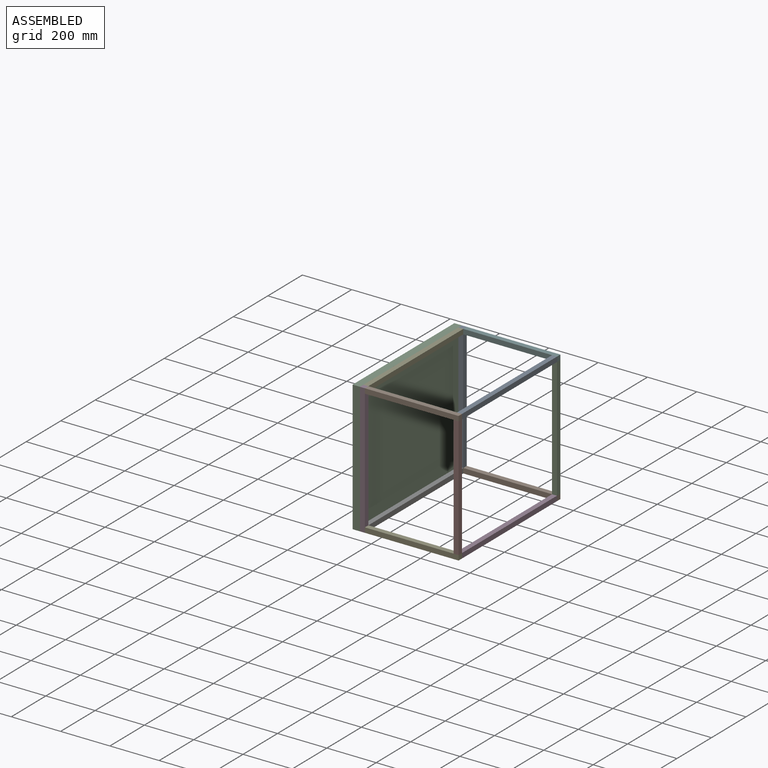
[diagram: assembled view]
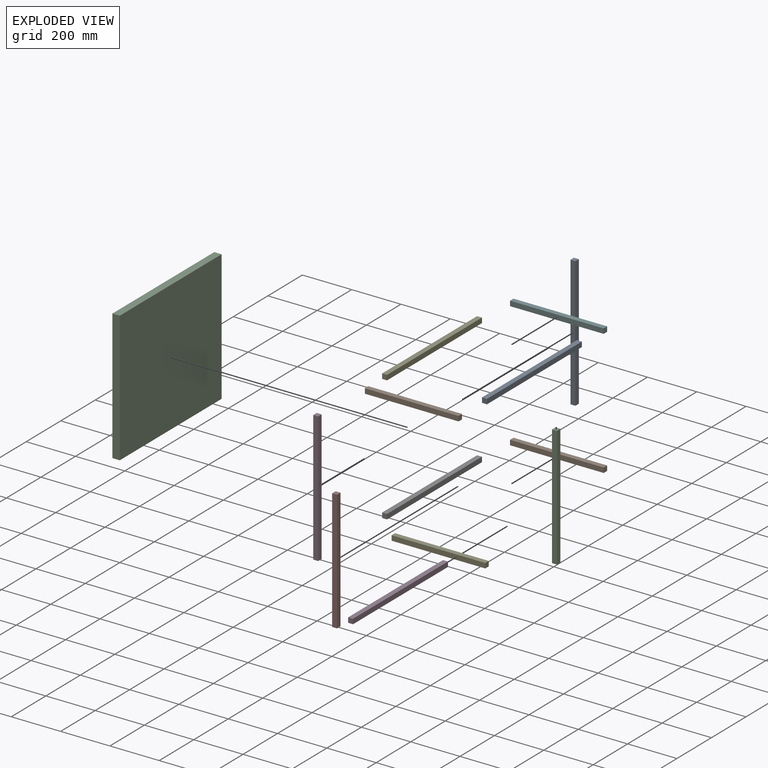
[diagram: exploded view]
GUIDED TOUR — MATED ASSEMBLY (Onshape document 57854998e4b019039451f812, AutoMate assembly 57854998e4b019039451f812_761b1b42168490a7aa2445a3_7e56be19967d6764d0dd4765_default)

This assembly has 13 components, labeled P0..P12 below (a component is one placed occurrence of a part; the same part can appear more than once), held together by 12 mates. A mate is a constraint between two components; its type names the relative motion it leaves free:
  FASTENED — locks the two components together rigidly (no relative motion).
Axis/direction vectors are unit vectors and 'through' points are millimeter coordinates, both in the assembly's world frame.

MATES
  1. FASTENED "Fastened 1": P0 <-> P4, direction (0.000, -1.000, 0.000) through (15.89, 796.18, 321.85) mm
  2. FASTENED "Fastened 3": P7 <-> P9, direction (0.000, 0.000, 1.000) through (415.89, 226.18, 301.85) mm
  3. FASTENED "Fastened 7": P1 <-> P0, direction (-1.000, 0.000, 0.000) through (35.89, 816.18, -208.15) mm
  4. FASTENED "Fastened 9": P8 <-> P5, direction (0.000, 1.000, 0.000) through (415.89, 796.18, 321.85) mm
  5. FASTENED "Fastened 2": P4 <-> P3, direction (0.000, -1.000, 0.000) through (35.89, 246.18, 321.85) mm
  6. FASTENED "Fastened 13": P10 <-> P0, direction (1.000, 0.000, 0.000) through (15.89, 816.18, -208.15) mm
  7. FASTENED "Fastened 4": P6 <-> P3, direction (0.000, -1.000, 0.000) through (35.89, 246.18, -208.15) mm
  8. FASTENED "Fastened 10": P11 <-> P1, direction (0.000, 1.000, 0.000) through (415.89, 796.18, -188.15) mm
  9. FASTENED "Fastened 6": P5 <-> P0, direction (-1.000, 0.000, 0.000) through (35.89, 816.18, 321.85) mm
  10. FASTENED "Fastened 5": P9 <-> P3, direction (-1.000, 0.000, 0.000) through (35.89, 226.18, 321.85) mm
  11. FASTENED "Fastened 8": P12 <-> P3, direction (-1.000, 0.000, 0.000) through (35.89, 226.18, -208.15) mm
  12. FASTENED "Fastened 11": P2 <-> P5, direction (0.000, 0.000, 1.000) through (415.89, 816.18, 301.85) mm

ASSEMBLY ORDER
  1. P9 — the base component [order verified]
  2. P3 [order verified]
  3. P8 [order verified]
  4. P6 [order verified]
  5. P4 [order verified]
  6. P0 [order verified]
  7. P5 [order verified]
  8. P2 [order verified]
  9. P1 [order verified]
  10. P12 [order verified]
  11. P11 [order verified]
  12. P7 [order verified]
  13. P10 [order verified]
(P1 verified with a relaxed clearance tolerance: the source model stores slight part interference there.)
Order-tag legend:
  [order verified] — this step's position reverses a verified removal order: the component was checked to insert without passing through the ones already placed.

Of the 13 components, 13 carry the full construction recipe — the FeatureScript program that regenerates the part's solid from scratch; the rest are supplied as boundary geometry only.
Because this assembly has more than 12 components, the tour below covers the 12 most significant ones individually (every recipe-attached component first, then the largest by part volume), in assembly order; the remaining 1 are summarized together in a grouped section at the end.
Each toured component is shown spotlighted twice — in the assembled view, then in the exploded view, where a leader line traces a displaced component back to its assembled socket (saturated green if recipe-attached, orange if geometry-only; every other component desaturated gray) — followed by its recipe or geometry summary and the mates that hold it.
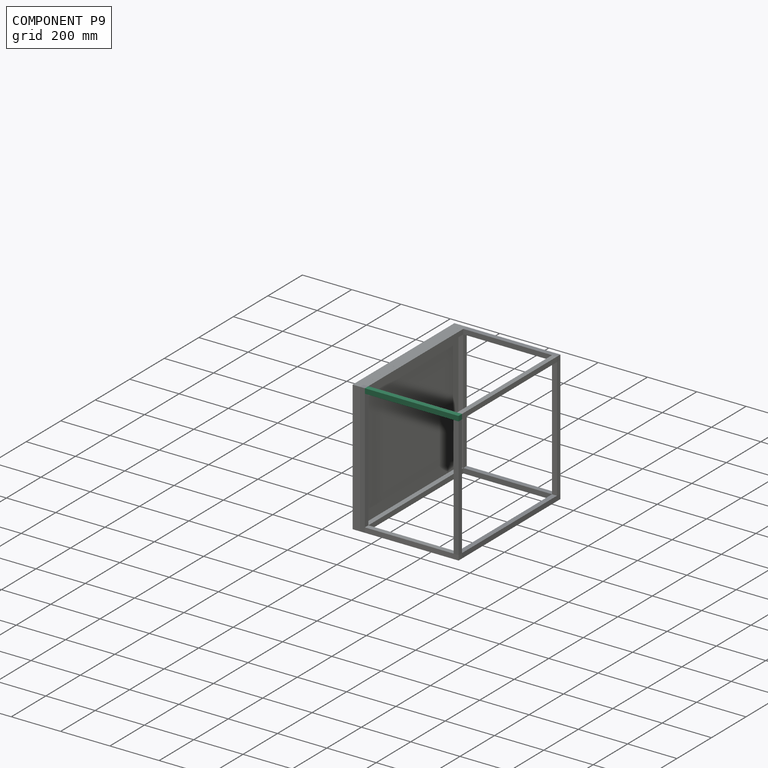
[diagram: component P9 — assembled]
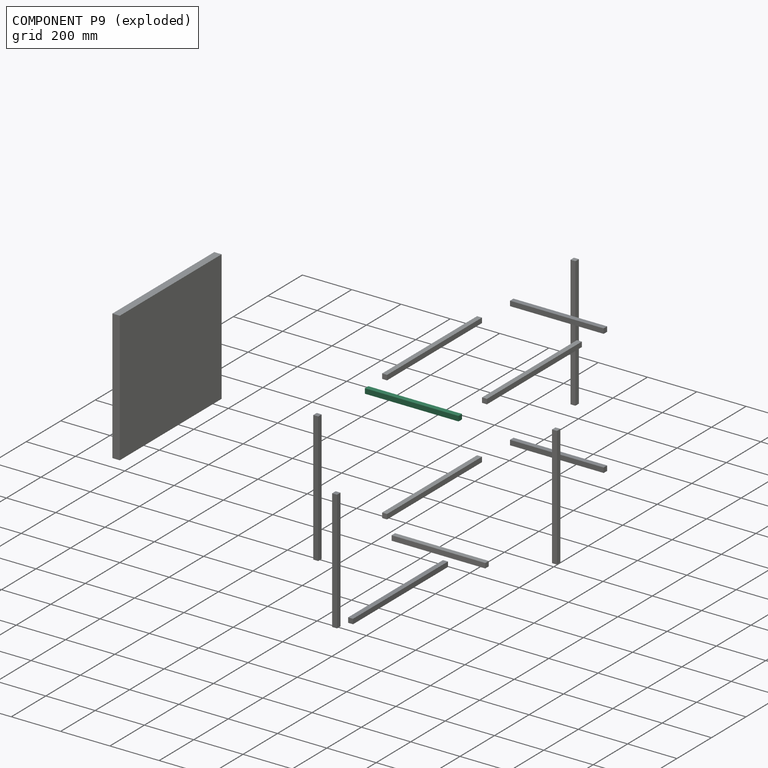
[diagram: component P9 — exploded]
COMPONENT P9 — same part as P1 (CADFS 00195522); its construction recipe is shown at P1.
Held by: FASTENED mate "Fastened 3" to P7; FASTENED mate "Fastened 5" to P3.
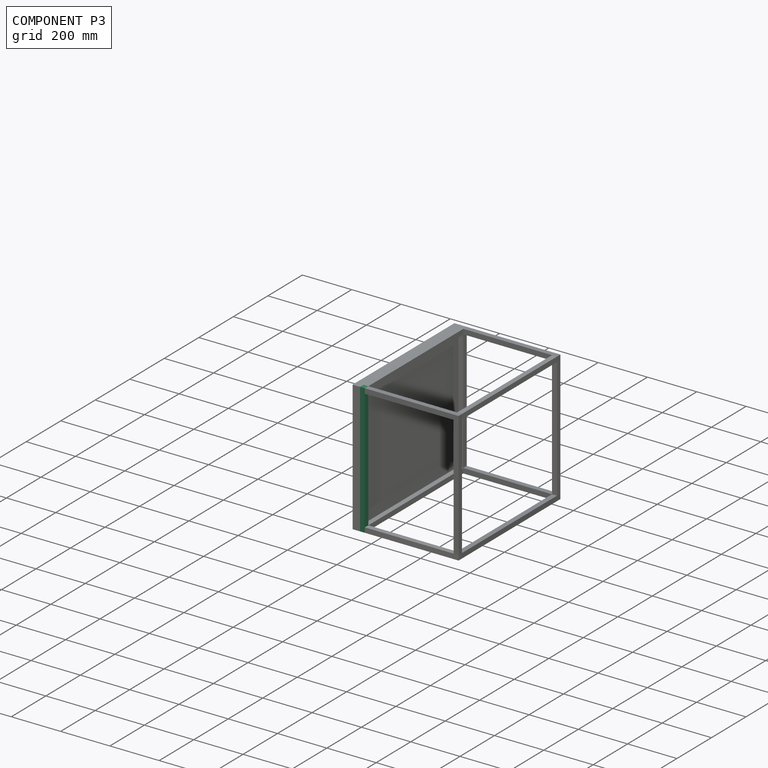
[diagram: component P3 — assembled]
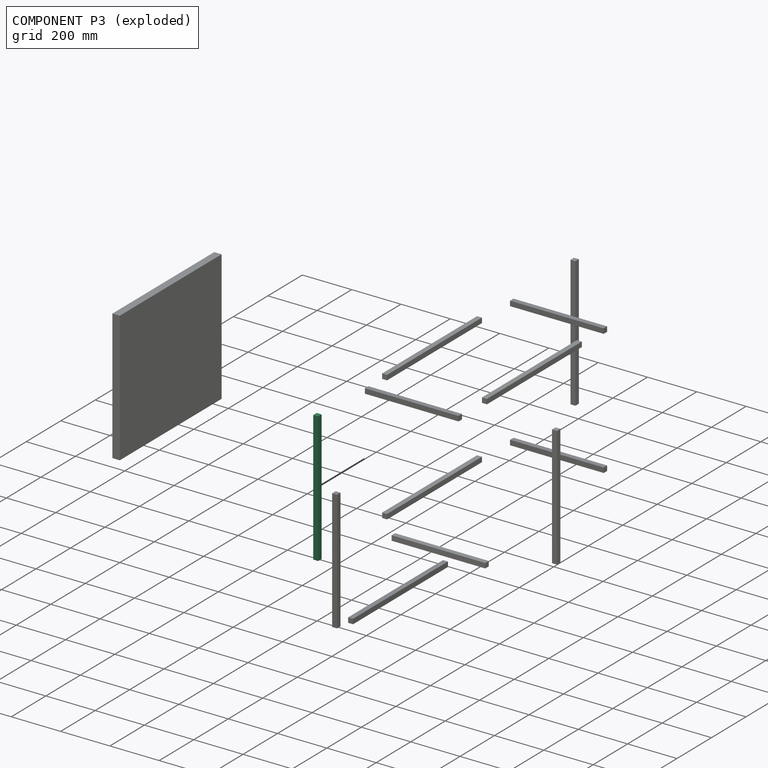
[diagram: component P3 — exploded]
COMPONENT P3 — same part as P0 (CADFS 00195802); its construction recipe is shown at P0.
Held by: FASTENED mate "Fastened 2" to P4; FASTENED mate "Fastened 4" to P6; FASTENED mate "Fastened 5" to P9; FASTENED mate "Fastened 8" to P12.
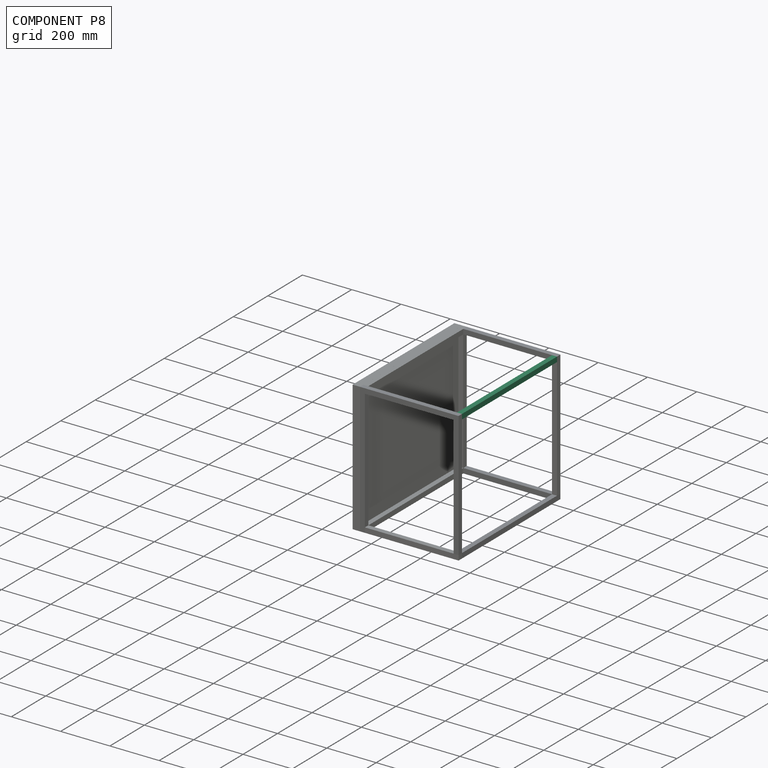
[diagram: component P8 — assembled]
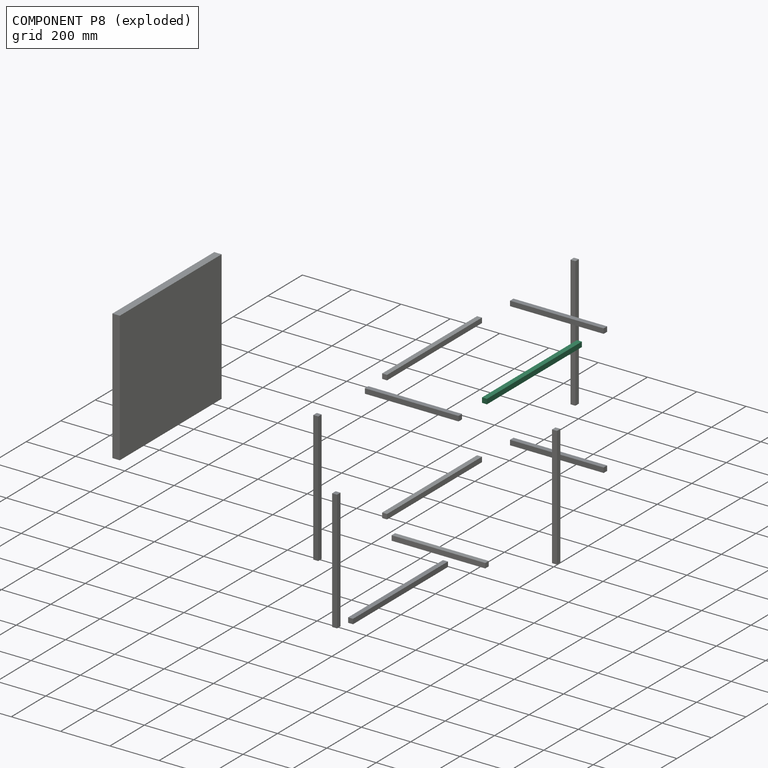
[diagram: component P8 — exploded]
COMPONENT P8 — same part as P4 (CADFS 00195523); its construction recipe is shown at P4.
Held by: FASTENED mate "Fastened 9" to P5.
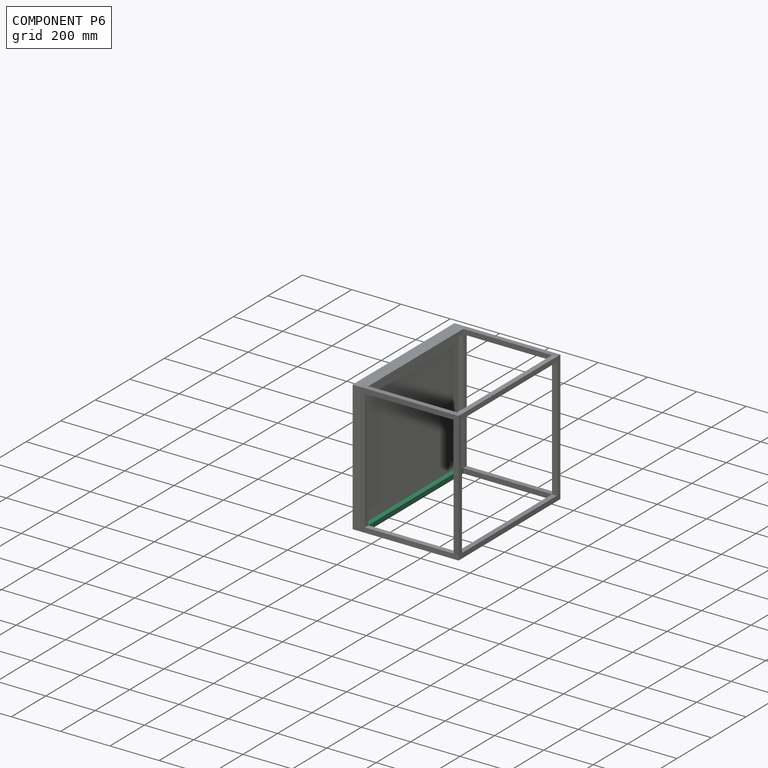
[diagram: component P6 — assembled]
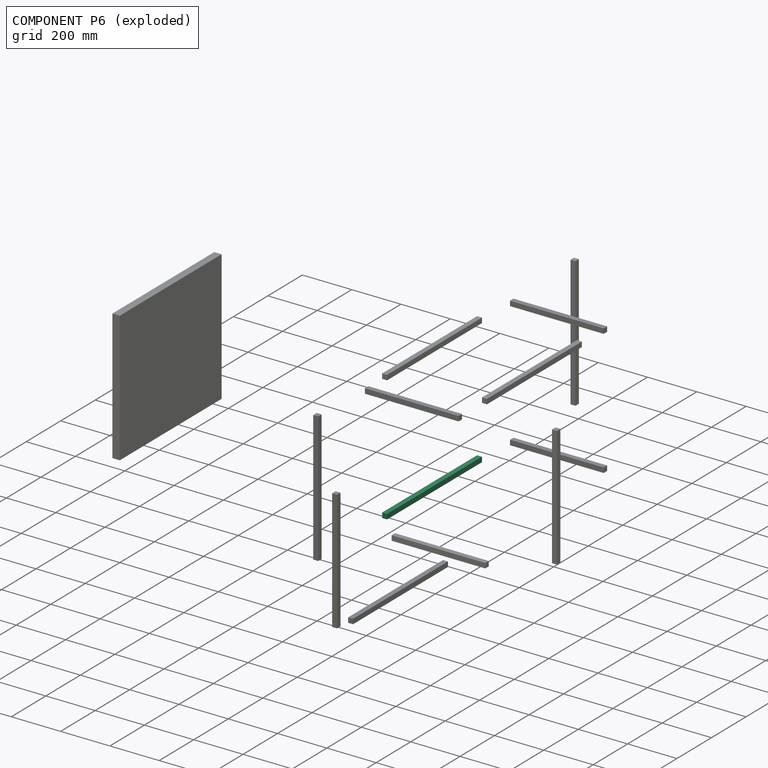
[diagram: component P6 — exploded]
COMPONENT P6 — same part as P4 (CADFS 00195523); its construction recipe is shown at P4.
Held by: FASTENED mate "Fastened 4" to P3.
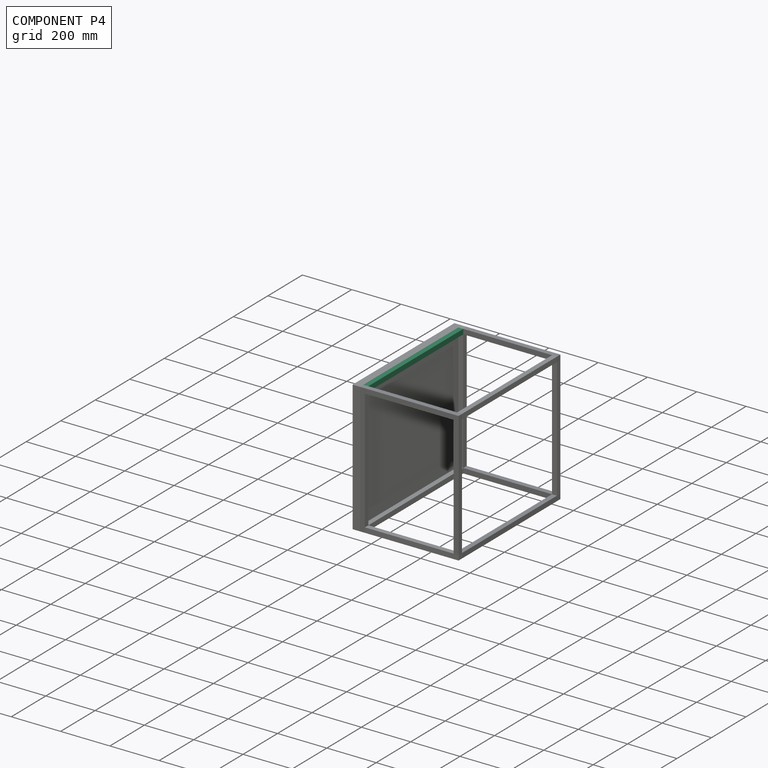
[diagram: component P4 — assembled]
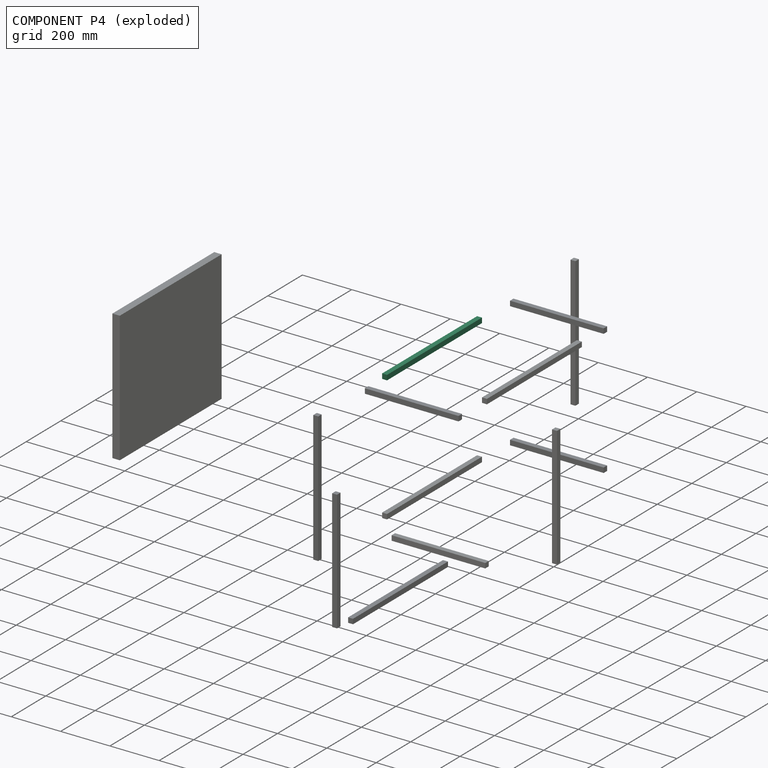
[diagram: component P4 — exploded]
COMPONENT P4 — recipe-attached (CADFS 00195523, mesh-verified: the recipe's output STEP matches this component's geometry to below the mesh-comparison resolution (tessellation chordal tolerance ~0.826 mm)).
Held by: FASTENED mate "Fastened 1" to P0; FASTENED mate "Fastened 2" to P3.
Construction recipe (FeatureScript — the CAD program that rebuilds this solid; sketch coordinates are in the units given by the * unit suffixes, e.g. mm):

FeatureScript 1511;
import(path : "onshape/std/geometry.fs", version : "1511.0");
import(path : "onshape/std/common.fs", version : "1511.0");
const mm = millimeter;
const VERTEX = EntityType.VERTEX;
const EDGE = EntityType.EDGE;
const FACE = EntityType.FACE;
const BODY = EntityType.BODY;
function v(x, y){return vector(x, y);}
function OD(order){return orderDisambiguation(order);}
function OSD(set){return originalSetDisambiguation(set);}
function TD(topology){return topologyDisambiguation(topology);}
function TDD(query){return trueDependencyDisambiguation(query);}
function sQuery(a, b, c) {return sketchEntityQuery(a, b, c);}

annotation { "Feature Type Name" : "Feature", "Feature Type Description" : "" }
export const myFeature = defineFeature(function(context is Context, id is Id, definition is map)
    precondition{}
    {
        {
            var Q0;
            Q0=qCreatedBy(makeId("Top.planeOp"),FACE);
            var sketch = newSketch(context, id + "F0", { "sketchPlane" : qUnion([Q0])});
            skLineSegment(sketch, "E0.bottom", {"start": v(-96.3, -36.6) * mm, "end": v(-76.3, -36.6) * mm});
            skLineSegment(sketch, "E0.top", {"start": v(-96.3, -16.6) * mm, "end": v(-76.3, -16.6) * mm});
            skLineSegment(sketch, "E0.left", {"start": v(-96.3, -36.6) * mm, "end": v(-96.3, -16.6) * mm});
            skLineSegment(sketch, "E0.right", {"start": v(-76.3, -36.6) * mm, "end": v(-76.3, -16.6) * mm});
            skSolve(sketch);
        }
        {
            var Q0;
            Q0=makeQuery(id+"F0.imprint","IMPRINT",FACE,{"disambiguationData":[TD([[makeQuery(id+"F0.imprint","IMPRINT",EDGE,{"derivedFrom":sQuery(id+"F0.wireOp",EDGE,"E0.bottom")}),1.0]])]});
            extrude(context, id + "F1", {"entities" : qUnion([Q0]), "depth" : 550 * mm});
        }
    });
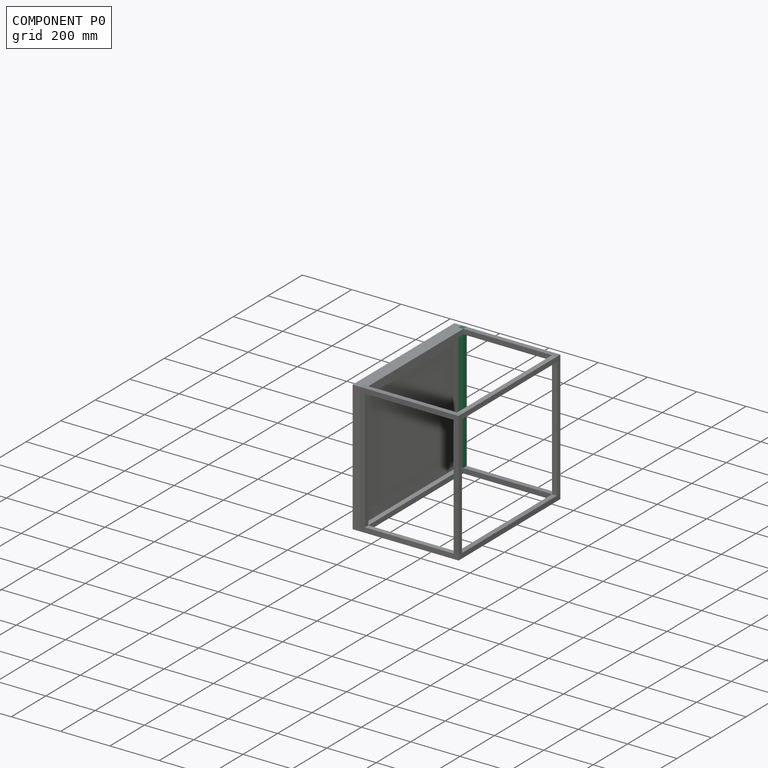
[diagram: component P0 — assembled]
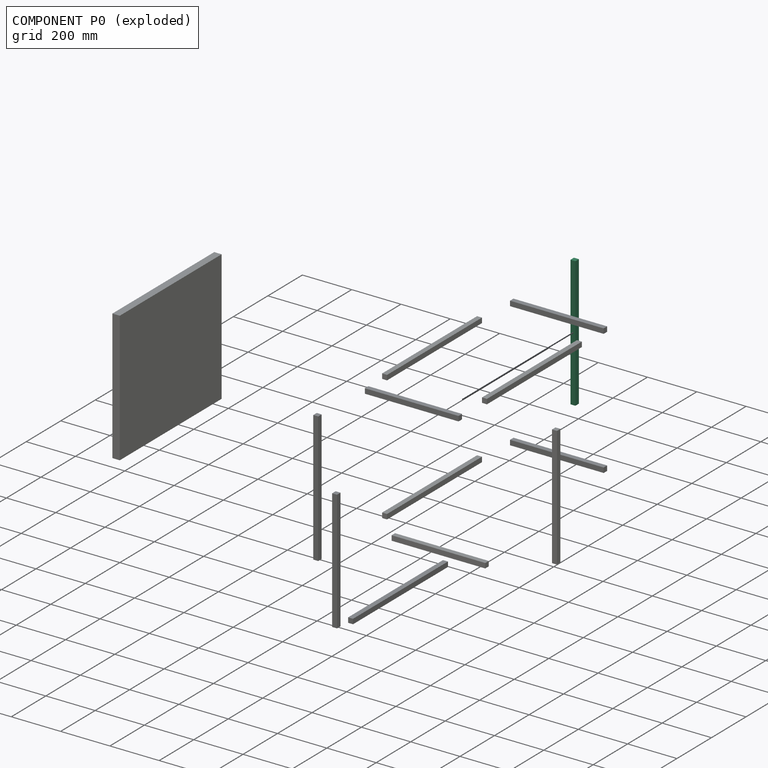
[diagram: component P0 — exploded]
COMPONENT P0 — recipe-attached (CADFS 00195802, mesh-verified: the recipe's output STEP matches this component's geometry to below the mesh-comparison resolution (tessellation chordal tolerance ~0.796 mm)).
Held by: FASTENED mate "Fastened 1" to P4; FASTENED mate "Fastened 7" to P1; FASTENED mate "Fastened 13" to P10; FASTENED mate "Fastened 6" to P5.
Construction recipe (FeatureScript — the CAD program that rebuilds this solid; sketch coordinates are in the units given by the * unit suffixes, e.g. mm):

FeatureScript 1511;
import(path : "onshape/std/geometry.fs", version : "1511.0");
import(path : "onshape/std/common.fs", version : "1511.0");
const mm = millimeter;
const VERTEX = EntityType.VERTEX;
const EDGE = EntityType.EDGE;
const FACE = EntityType.FACE;
const BODY = EntityType.BODY;
function v(x, y){return vector(x, y);}
function OD(order){return orderDisambiguation(order);}
function OSD(set){return originalSetDisambiguation(set);}
function TD(topology){return topologyDisambiguation(topology);}
function TDD(query){return trueDependencyDisambiguation(query);}
function sQuery(a, b, c) {return sketchEntityQuery(a, b, c);}

annotation { "Feature Type Name" : "Feature", "Feature Type Description" : "" }
export const myFeature = defineFeature(function(context is Context, id is Id, definition is map)
    precondition{}
    {
        {
            var Q0;
            Q0=qCreatedBy(makeId("Top.planeOp"),FACE);
            var sketch = newSketch(context, id + "F0", { "sketchPlane" : qUnion([Q0])});
            skLineSegment(sketch, "E0.bottom", {"start": v(-70.8, -20) * mm, "end": v(-50.8, -20) * mm});
            skLineSegment(sketch, "E0.top", {"start": v(-70.8, 0) * mm, "end": v(-50.8, 0) * mm});
            skLineSegment(sketch, "E0.left", {"start": v(-70.8, -20) * mm, "end": v(-70.8, 0) * mm});
            skLineSegment(sketch, "E0.right", {"start": v(-50.8, -20) * mm, "end": v(-50.8, 0) * mm});
            skSolve(sketch);
        }
        {
            var Q0;
            Q0=makeQuery(id+"F0.imprint","IMPRINT",FACE,{"disambiguationData":[TD([[makeQuery(id+"F0.imprint","IMPRINT",EDGE,{"derivedFrom":sQuery(id+"F0.wireOp",EDGE,"E0.bottom")}),1.0]])]});
            extrude(context, id + "F1", {"entities" : qUnion([Q0]), "depth" : 530 * mm});
        }
    });
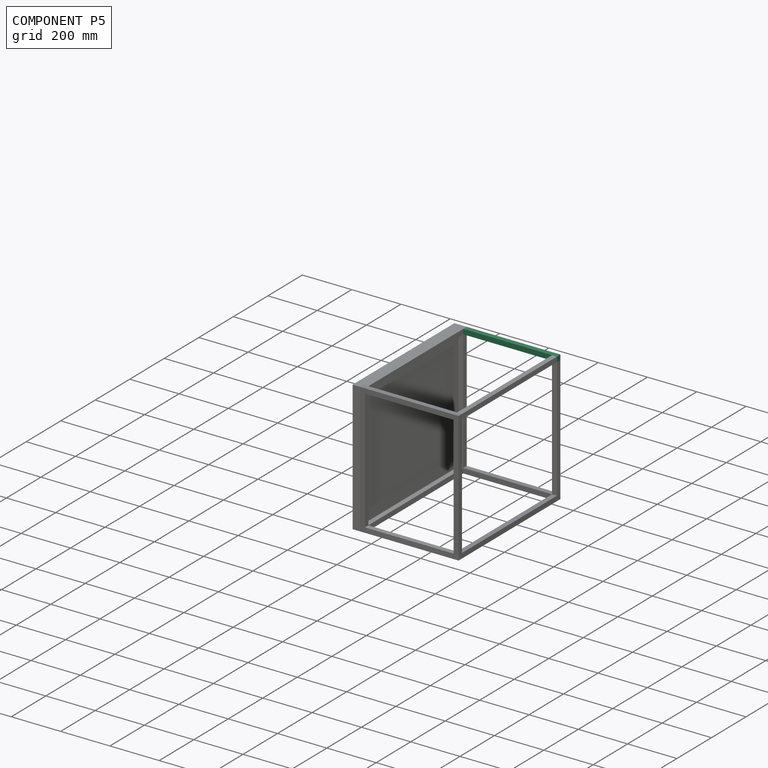
[diagram: component P5 — assembled]
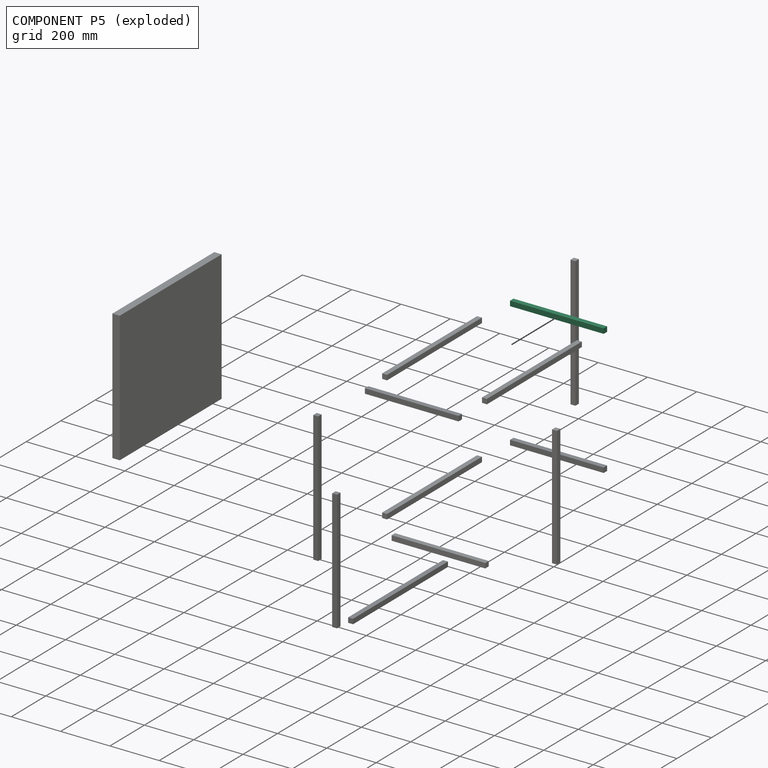
[diagram: component P5 — exploded]
COMPONENT P5 — same part as P1 (CADFS 00195522); its construction recipe is shown at P1.
Held by: FASTENED mate "Fastened 9" to P8; FASTENED mate "Fastened 6" to P0; FASTENED mate "Fastened 11" to P2.
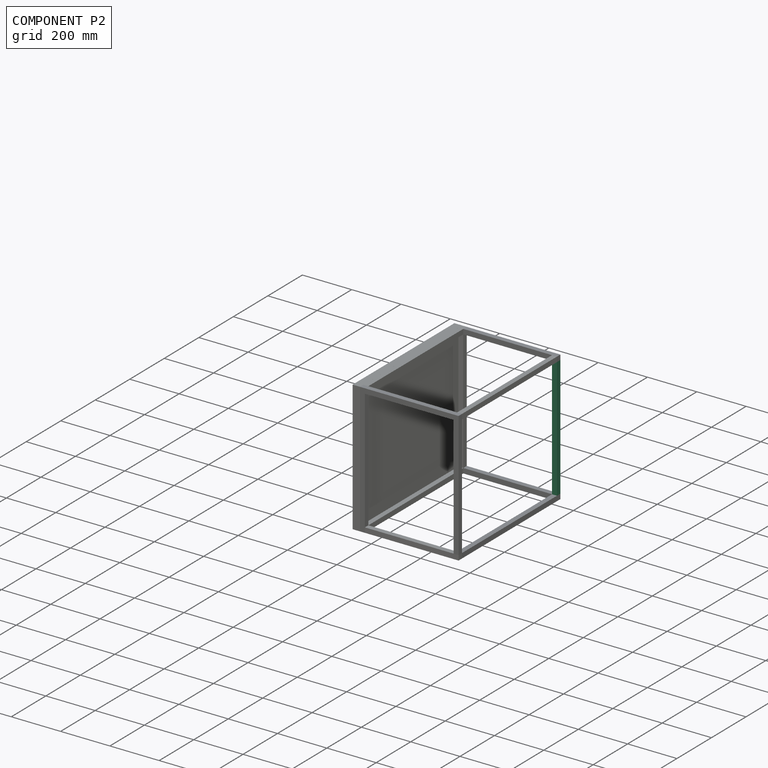
[diagram: component P2 — assembled]
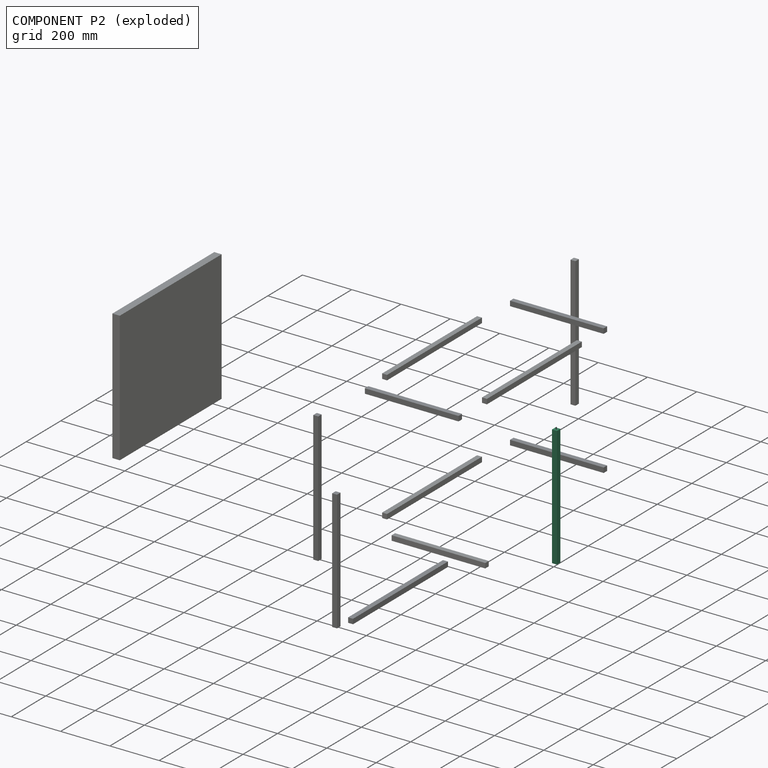
[diagram: component P2 — exploded]
COMPONENT P2 — recipe-attached (CADFS 00195806, mesh-verified: the recipe's output STEP matches this component's geometry to below the mesh-comparison resolution (tessellation chordal tolerance ~0.736 mm)).
Held by: FASTENED mate "Fastened 11" to P5.
Construction recipe (FeatureScript — the CAD program that rebuilds this solid; sketch coordinates are in the units given by the * unit suffixes, e.g. mm):

FeatureScript 1511;
import(path : "onshape/std/geometry.fs", version : "1511.0");
import(path : "onshape/std/common.fs", version : "1511.0");
const mm = millimeter;
const VERTEX = EntityType.VERTEX;
const EDGE = EntityType.EDGE;
const FACE = EntityType.FACE;
const BODY = EntityType.BODY;
function v(x, y){return vector(x, y);}
function OD(order){return orderDisambiguation(order);}
function OSD(set){return originalSetDisambiguation(set);}
function TD(topology){return topologyDisambiguation(topology);}
function TDD(query){return trueDependencyDisambiguation(query);}
function sQuery(a, b, c) {return sketchEntityQuery(a, b, c);}

annotation { "Feature Type Name" : "Feature", "Feature Type Description" : "" }
export const myFeature = defineFeature(function(context is Context, id is Id, definition is map)
    precondition{}
    {
        {
            var Q0;
            Q0=qCreatedBy(makeId("Top.planeOp"),FACE);
            var sketch = newSketch(context, id + "F0", { "sketchPlane" : qUnion([Q0])});
            skLineSegment(sketch, "E0.bottom", {"start": v(-91.8, -27.19) * mm, "end": v(-71.8, -27.19) * mm});
            skLineSegment(sketch, "E0.top", {"start": v(-91.8, -7.19) * mm, "end": v(-71.8, -7.19) * mm});
            skLineSegment(sketch, "E0.left", {"start": v(-91.8, -27.19) * mm, "end": v(-91.8, -7.19) * mm});
            skLineSegment(sketch, "E0.right", {"start": v(-71.8, -27.19) * mm, "end": v(-71.8, -7.19) * mm});
            skSolve(sketch);
        }
        {
            var Q0;
            Q0=makeQuery(id+"F0.imprint","IMPRINT",FACE,{"disambiguationData":[TD([[makeQuery(id+"F0.imprint","IMPRINT",EDGE,{"derivedFrom":sQuery(id+"F0.wireOp",EDGE,"E0.bottom")}),1.0]])]});
            extrude(context, id + "F1", {"entities" : qUnion([Q0]), "depth" : 490 * mm});
        }
    });
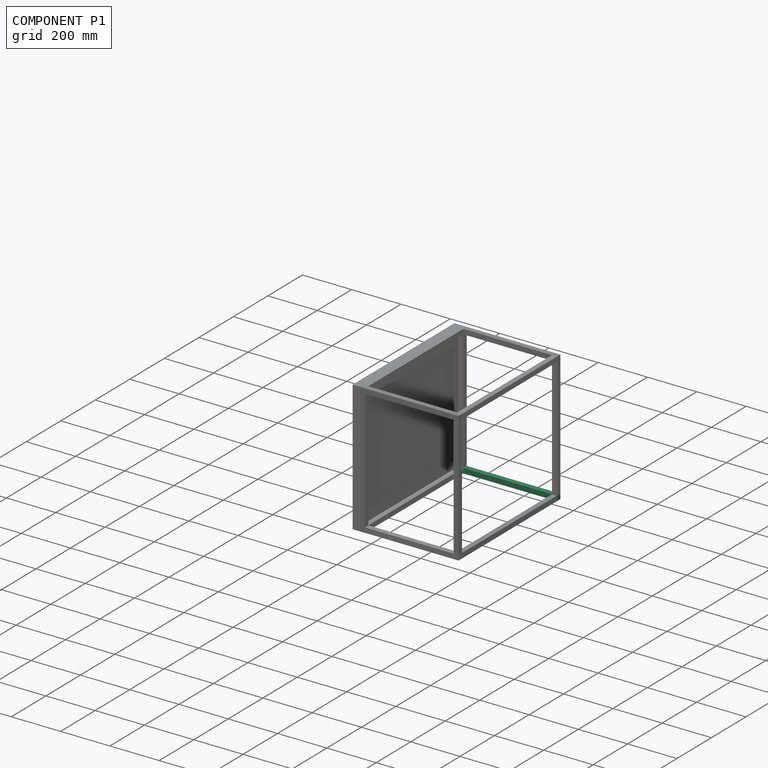
[diagram: component P1 — assembled]
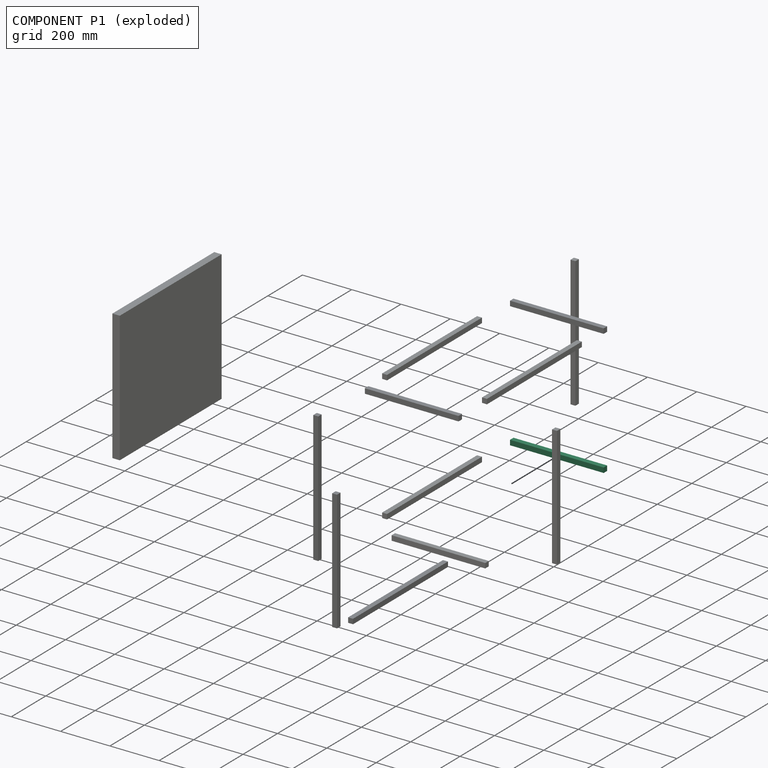
[diagram: component P1 — exploded]
COMPONENT P1 — recipe-attached (CADFS 00195522, mesh-verified: the recipe's output STEP matches this component's geometry to below the mesh-comparison resolution (tessellation chordal tolerance ~0.572 mm)).
Held by: FASTENED mate "Fastened 7" to P0; FASTENED mate "Fastened 10" to P11.
Construction recipe (FeatureScript — the CAD program that rebuilds this solid; sketch coordinates are in the units given by the * unit suffixes, e.g. mm):

FeatureScript 1511;
import(path : "onshape/std/geometry.fs", version : "1511.0");
import(path : "onshape/std/common.fs", version : "1511.0");
const mm = millimeter;
const VERTEX = EntityType.VERTEX;
const EDGE = EntityType.EDGE;
const FACE = EntityType.FACE;
const BODY = EntityType.BODY;
function v(x, y){return vector(x, y);}
function OD(order){return orderDisambiguation(order);}
function OSD(set){return originalSetDisambiguation(set);}
function TD(topology){return topologyDisambiguation(topology);}
function TDD(query){return trueDependencyDisambiguation(query);}
function sQuery(a, b, c) {return sketchEntityQuery(a, b, c);}

annotation { "Feature Type Name" : "Feature", "Feature Type Description" : "" }
export const myFeature = defineFeature(function(context is Context, id is Id, definition is map)
    precondition{}
    {
        {
            var Q0;
            Q0=qCreatedBy(makeId("Top.planeOp"),FACE);
            var sketch = newSketch(context, id + "F0", { "sketchPlane" : qUnion([Q0])});
            skLineSegment(sketch, "E0.bottom", {"start": v(-99.2, -20) * mm, "end": v(-79.2, -20) * mm});
            skLineSegment(sketch, "E0.top", {"start": v(-99.2, 0) * mm, "end": v(-79.2, 0) * mm});
            skLineSegment(sketch, "E0.left", {"start": v(-99.2, -20) * mm, "end": v(-99.2, 0) * mm});
            skLineSegment(sketch, "E0.right", {"start": v(-79.2, -20) * mm, "end": v(-79.2, 0) * mm});
            skSolve(sketch);
        }
        {
            var Q0;
            Q0=makeQuery(id+"F0.imprint","IMPRINT",FACE,{"disambiguationData":[TD([[makeQuery(id+"F0.imprint","IMPRINT",EDGE,{"derivedFrom":sQuery(id+"F0.wireOp",EDGE,"E0.bottom")}),1.0]])]});
            extrude(context, id + "F1", {"entities" : qUnion([Q0]), "depth" : 380 * mm});
        }
    });
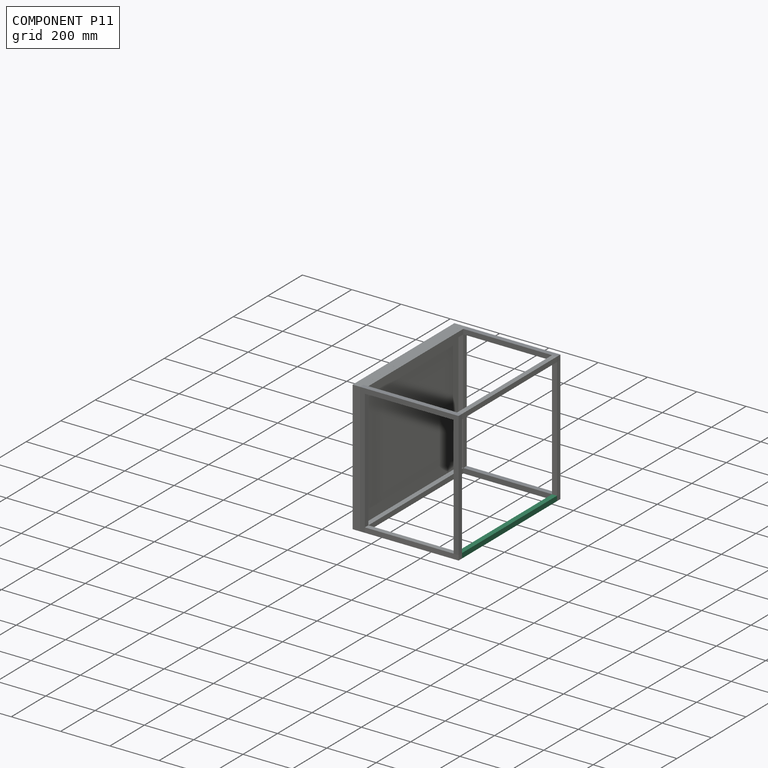
[diagram: component P11 — assembled]
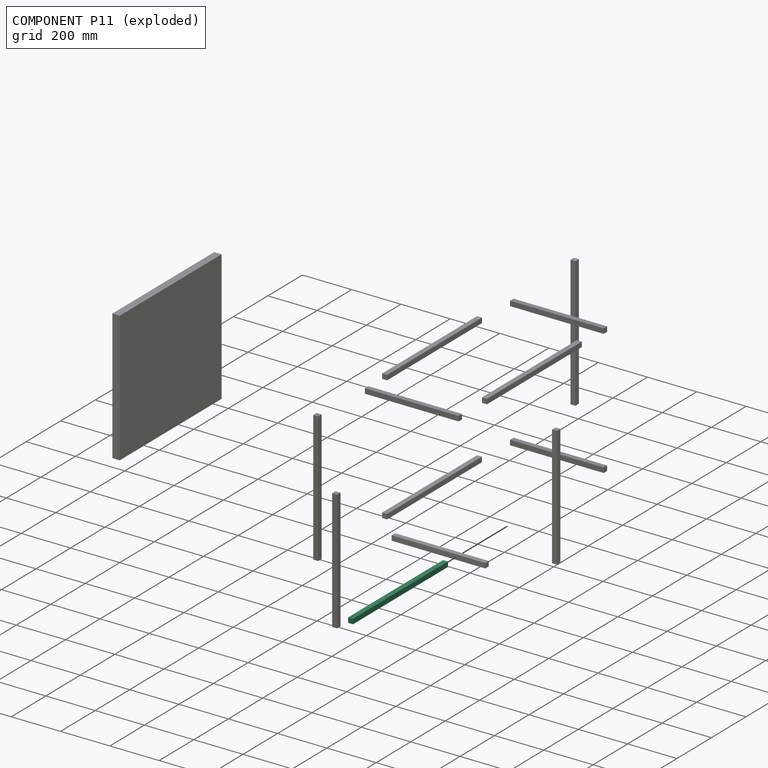
[diagram: component P11 — exploded]
COMPONENT P11 — same part as P4 (CADFS 00195523); its construction recipe is shown at P4.
Held by: FASTENED mate "Fastened 10" to P1.
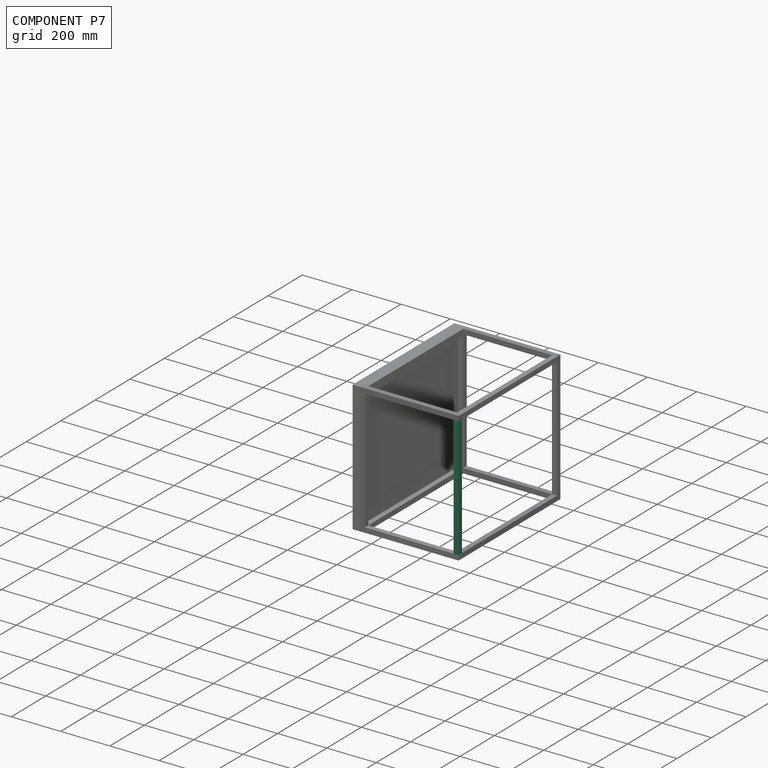
[diagram: component P7 — assembled]
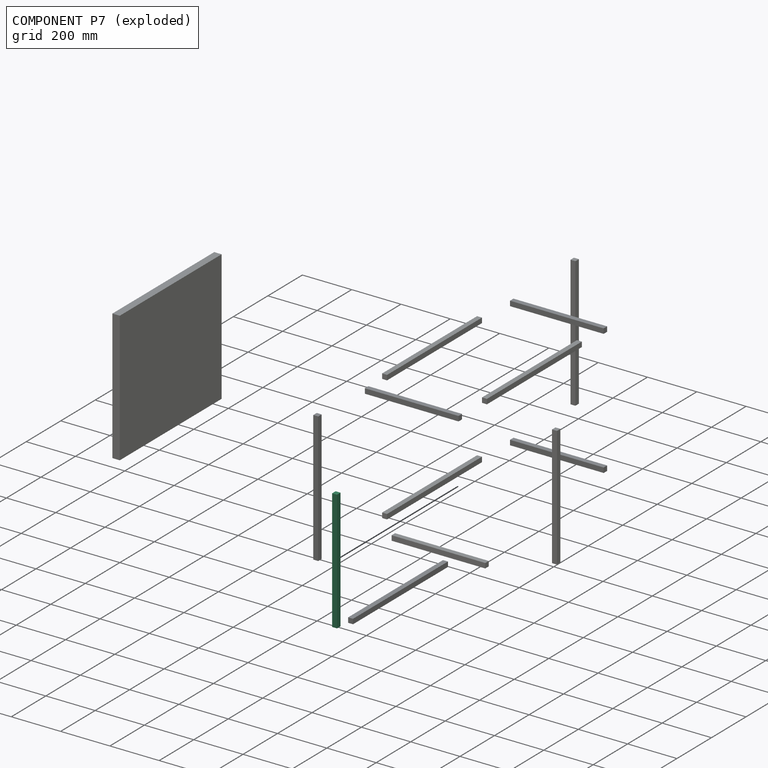
[diagram: component P7 — exploded]
COMPONENT P7 — same part as P2 (CADFS 00195806); its construction recipe is shown at P2.
Held by: FASTENED mate "Fastened 3" to P9.
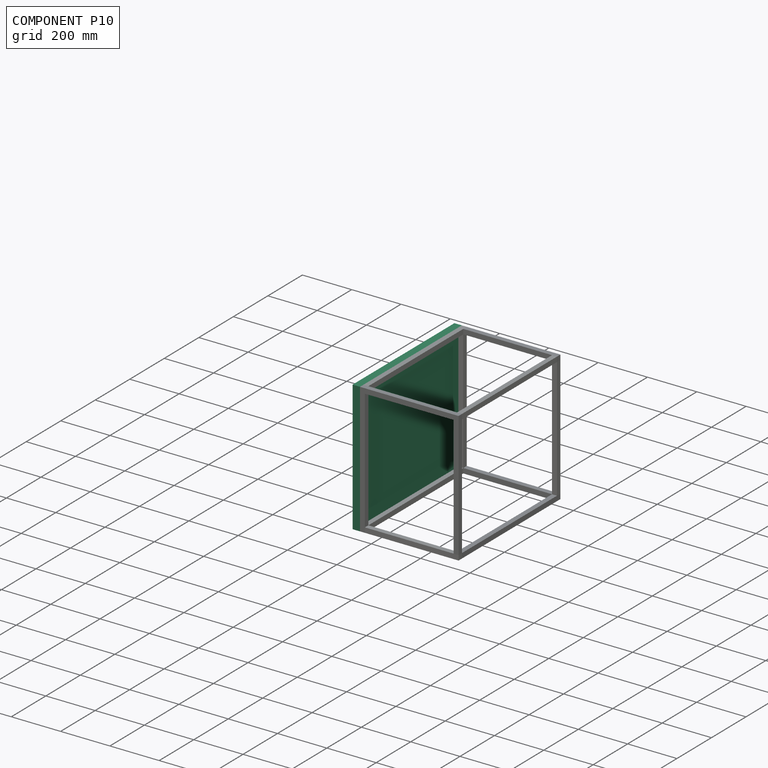
[diagram: component P10 — assembled]
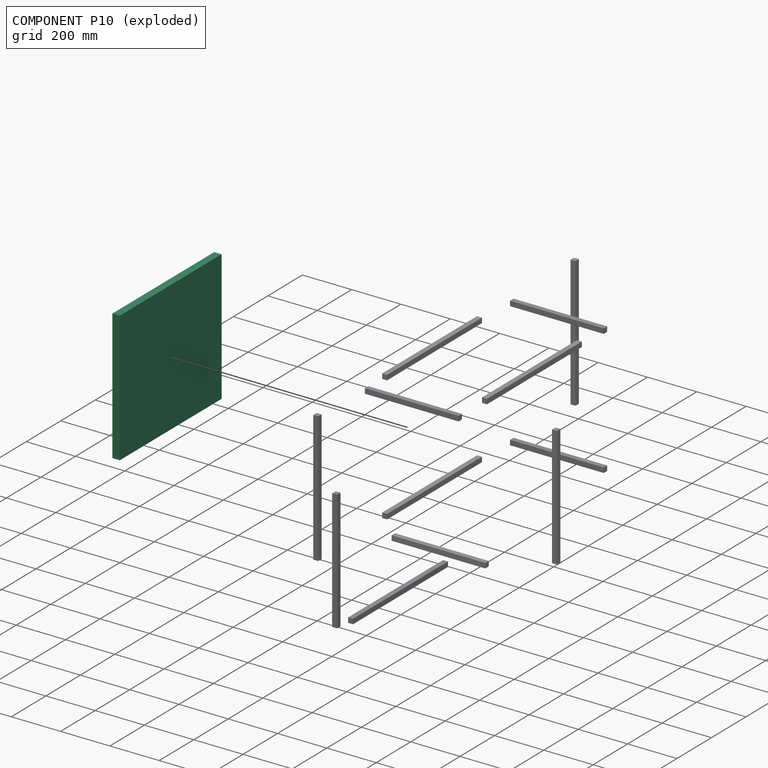
[diagram: component P10 — exploded]
COMPONENT P10 — recipe-attached (CADFS 00195805, mesh-verified: the recipe's output STEP matches this component's geometry to below the mesh-comparison resolution (tessellation chordal tolerance ~1.19 mm)).
Held by: FASTENED mate "Fastened 13" to P0.
Construction recipe (FeatureScript — the CAD program that rebuilds this solid; sketch coordinates are in the units given by the * unit suffixes, e.g. mm):

FeatureScript 1511;
import(path : "onshape/std/geometry.fs", version : "1511.0");
import(path : "onshape/std/common.fs", version : "1511.0");
const mm = millimeter;
const VERTEX = EntityType.VERTEX;
const EDGE = EntityType.EDGE;
const FACE = EntityType.FACE;
const BODY = EntityType.BODY;
function v(x, y){return vector(x, y);}
function OD(order){return orderDisambiguation(order);}
function OSD(set){return originalSetDisambiguation(set);}
function TD(topology){return topologyDisambiguation(topology);}
function TDD(query){return trueDependencyDisambiguation(query);}
function sQuery(a, b, c) {return sketchEntityQuery(a, b, c);}

annotation { "Feature Type Name" : "Feature", "Feature Type Description" : "" }
export const myFeature = defineFeature(function(context is Context, id is Id, definition is map)
    precondition{}
    {
        {
            var Q0;
            Q0=qCreatedBy(makeId("Top.planeOp"),FACE);
            var sketch = newSketch(context, id + "F0", { "sketchPlane" : qUnion([Q0])});
            skLineSegment(sketch, "E0.bottom", {"start": v(-603.57, -364.41) * mm, "end": v(-73.57, -364.41) * mm});
            skLineSegment(sketch, "E0.top", {"start": v(-603.57, 225.59) * mm, "end": v(-73.57, 225.59) * mm});
            skLineSegment(sketch, "E0.left", {"start": v(-603.57, -364.41) * mm, "end": v(-603.57, 225.59) * mm});
            skLineSegment(sketch, "E0.right", {"start": v(-73.57, -364.41) * mm, "end": v(-73.57, 225.59) * mm});
            skSolve(sketch);
        }
        {
            var Q0;
            Q0=makeQuery(id+"F0.imprint","IMPRINT",FACE,{"disambiguationData":[TD([[makeQuery(id+"F0.imprint","IMPRINT",EDGE,{"derivedFrom":sQuery(id+"F0.wireOp",EDGE,"E0.bottom")}),1.0]])]});
            extrude(context, id + "F1", {"entities" : qUnion([Q0]), "depth" : 30 * mm});
        }
    });
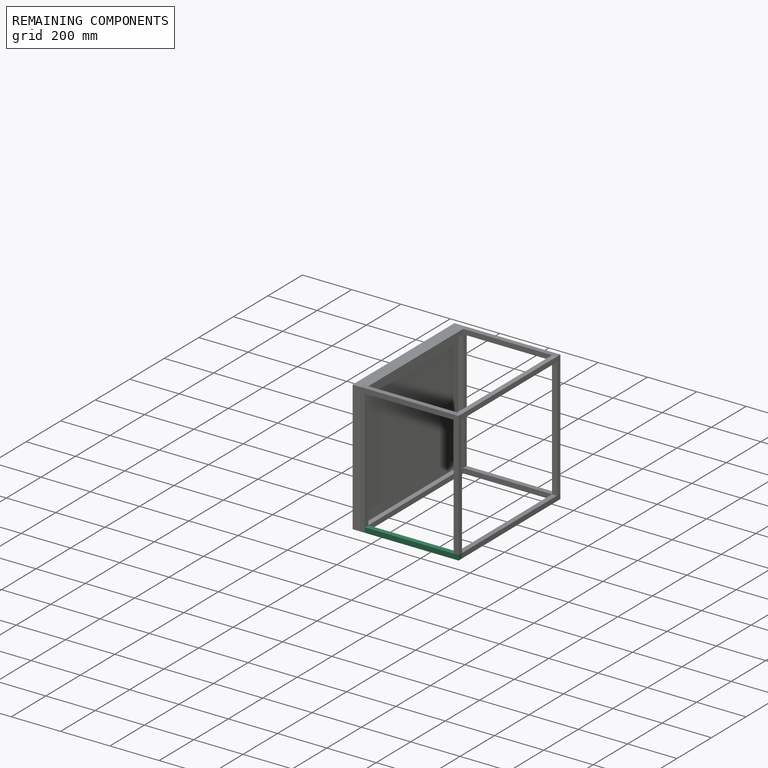
[diagram: remaining components — assembled]
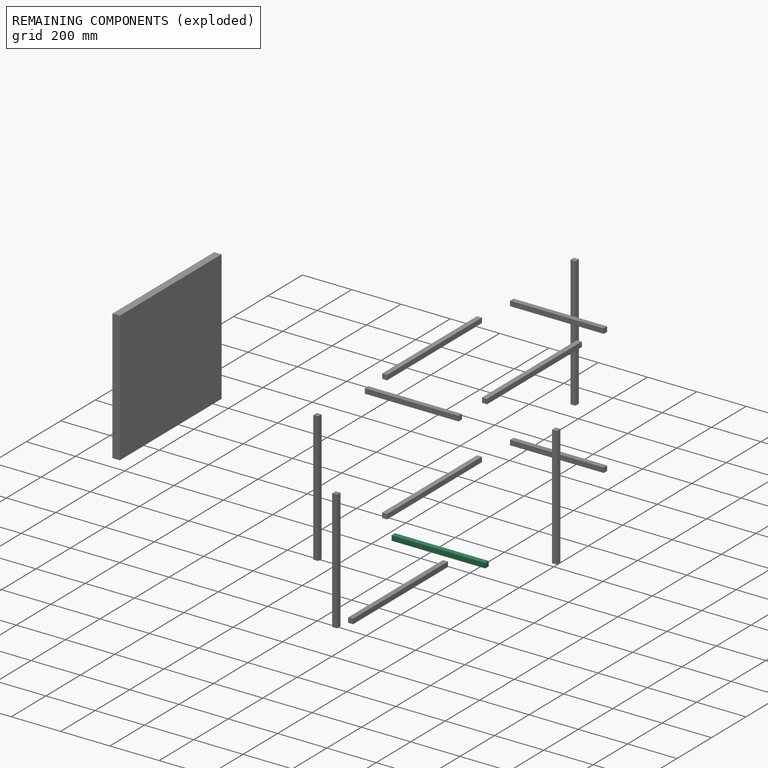
[diagram: remaining components — exploded]
REMAINING COMPONENTS (grouped) — the 1 components below fall outside the per-component tour by the significance rule stated above; both spotlight views highlight the whole group.
  P12: bounding box 380.0 x 20.0 x 20.0 mm, volume 152000 mm^3. Recipe-attached (CADFS 00195522; recipe not printed under the significance rule). Held by: FASTENED mate "Fastened 8" to P3.
PROVENANCE & LICENSES
Assembly (occurrences, transforms, mates, per-part STEP geometry): AutoMate dataset, Zenodo record 7776208, CC0.
Construction recipes: CADFS (HuggingFace VladPyatov/CADFS, CC-BY-4.0, layered over the ABC dataset), FeatureScript reconstruction programs keyed by ABC model id.
Join: ABC meta listings map ABC model id -> Onshape documentId; within a shared document, parts are matched by geometric signature (bounding-box dims + volume at 0.1% relative tolerance, exact B-rep face/solid counts).
Verification: 13 of this assembly's 13 components carry a recipe attachment, and every attachment is mesh-verified: the CADFS STEP and the AutoMate member STEP were compared as meshes in their shared local frame (symmetric sampled-point-to-mesh distance); worst across the 13 attachments: below the mesh-comparison resolution (tessellation chordal tolerance ~1.19 mm) on a 794 mm part.
Renders: orthographic iso camera (az 35 / el 25); the floor grid conveys scale (grid pitch printed in each image; no ruler). In the exploded view each component is displaced by its stored offset vector: the offsets alone carry the explosion direction (mate normal/axis signs are not orientation cues and do not encode it), and separation distances are assigned per mate-chain, not proportionally to assembly-order depth.
